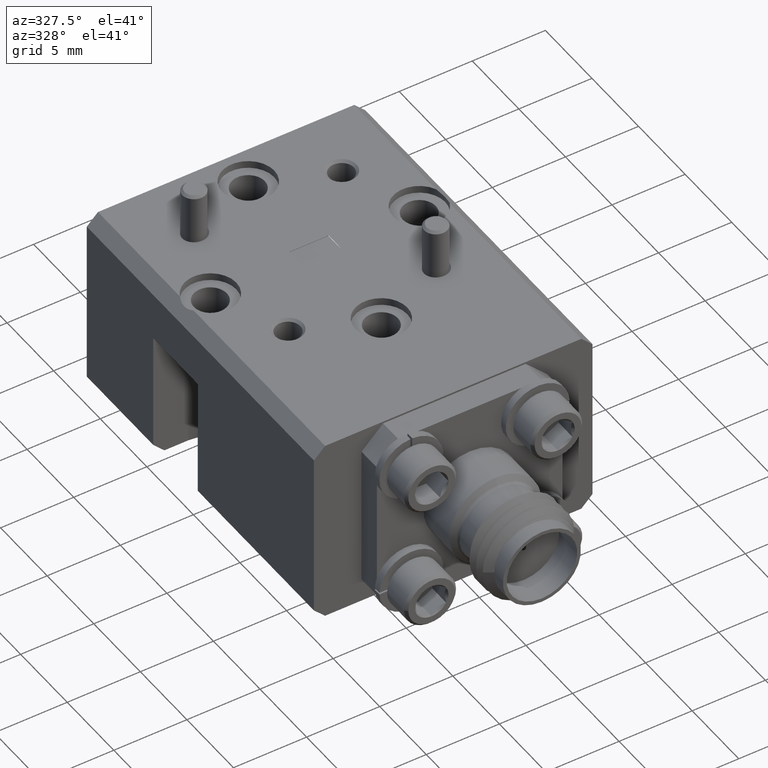
[diagram: clean part render]
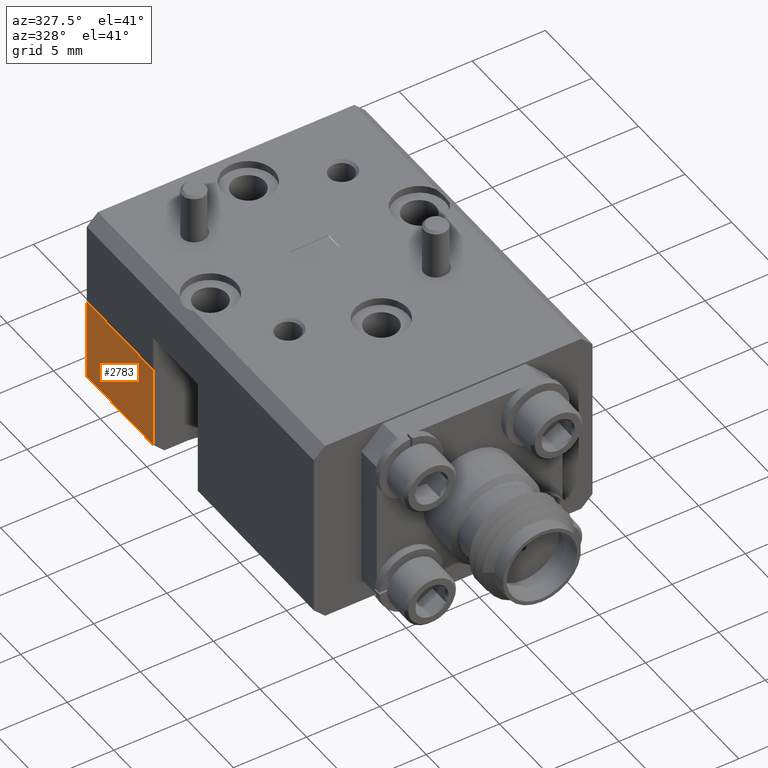
[diagram: same view with one face highlighted and labeled with its STEP entity id]
A machine part, auxiliary view. The second image highlights one B-rep face of the part: STEP entity #2783.
In plain terms, the highlighted planar face has unit normal (1, 0, 0).
Its self-contained STEP definition (entity closure, byte-faithful):
#117 = DIRECTION ( 'NONE',  ( -1.848892746611746400E-032, -1.000000000000000000, -2.775557561562888900E-017 ) ) ;
#121 = DIRECTION ( 'NONE',  ( -4.513000746678564400E-017, -2.000651077005296400E-017, 1.000000000000000000 ) ) ;
#140 = DIRECTION ( 'NONE',  ( 1.000000000000000000, 1.296380161915128700E-032, 4.513000746678564400E-017 ) ) ;
#207 = CARTESIAN_POINT ( 'NONE',  ( -0.3750000000000001100, -0.4799999999999999800, -0.2550000000000000000 ) ) ;
#250 = LINE ( 'NONE', #7515, #6248 ) ;
#692 = ORIENTED_EDGE ( 'NONE', *, *, #7985, .T. ) ;
#711 = VERTEX_POINT ( 'NONE', #5286 ) ;
#907 = CARTESIAN_POINT ( 'NONE',  ( -0.3750000000000001100, 0.4800000000000001500, -0.2550000000000000000 ) ) ;
#960 = PLANE ( 'NONE',  #9520 ) ;
#967 = LINE ( 'NONE', #6202, #7733 ) ;
#1178 = VERTEX_POINT ( 'NONE', #5840 ) ;
#2321 = VERTEX_POINT ( 'NONE', #2592 ) ;
#2592 = CARTESIAN_POINT ( 'NONE',  ( -0.3750000000000001100, 0.1989999999999999500, -0.2249999999999997600 ) ) ;
#2655 = VECTOR ( 'NONE', #117, 39.37007874015748100 ) ;
#2783 = ADVANCED_FACE ( 'NONE', ( #8602 ), #960, .F. ) ;
#3117 = LINE ( 'NONE', #907, #4462 ) ;
#3471 = EDGE_CURVE ( 'NONE', #2321, #1178, #967, .T. ) ;
#4462 = VECTOR ( 'NONE', #121, 39.37007874015748100 ) ;
#4891 = CARTESIAN_POINT ( 'NONE',  ( -0.3750000000000001100, 0.1989999999999999500, -0.2249999999999997600 ) ) ;
#5013 = DIRECTION ( 'NONE',  ( 1.848892746611746400E-032, 1.000000000000000000, 2.775557561562888900E-017 ) ) ;
#5286 = CARTESIAN_POINT ( 'NONE',  ( -0.3750000000000001100, 0.4800000000000001500, 1.332267629550187000E-017 ) ) ;
#5377 = EDGE_CURVE ( 'NONE', #9307, #711, #3117, .T. ) ;
#5773 = EDGE_LOOP ( 'NONE', ( #7519, #7492, #9533, #692 ) ) ;
#5840 = CARTESIAN_POINT ( 'NONE',  ( -0.3750000000000001100, 0.1989999999999999500, 5.523359547510147900E-018 ) ) ;
#6202 = CARTESIAN_POINT ( 'NONE',  ( -0.3750000000000001100, 0.1989999999999999500, -0.2550393700787401100 ) ) ;
#6248 = VECTOR ( 'NONE', #5013, 39.37007874015748100 ) ;
#7004 = DIRECTION ( 'NONE',  ( -4.513000746678564400E-017, -2.000651077005296400E-017, 1.000000000000000000 ) ) ;
#7172 = EDGE_CURVE ( 'NONE', #9307, #2321, #10071, .T. ) ;
#7492 = ORIENTED_EDGE ( 'NONE', *, *, #7172, .T. ) ;
#7515 = CARTESIAN_POINT ( 'NONE',  ( -0.3750000000000001100, -0.4799999999999999800, -1.332267629550186700E-017 ) ) ;
#7519 = ORIENTED_EDGE ( 'NONE', *, *, #5377, .F. ) ;
#7733 = VECTOR ( 'NONE', #7004, 39.37007874015748100 ) ;
#7985 = EDGE_CURVE ( 'NONE', #1178, #711, #250, .T. ) ;
#8001 = DIRECTION ( 'NONE',  ( 4.513000746678564400E-017, 2.000651077005296400E-017, -1.000000000000000000 ) ) ;
#8602 = FACE_OUTER_BOUND ( 'NONE', #5773, .T. ) ;
#9307 = VERTEX_POINT ( 'NONE', #10145 ) ;
#9520 = AXIS2_PLACEMENT_3D ( 'NONE', #207, #140, #8001 ) ;
#9533 = ORIENTED_EDGE ( 'NONE', *, *, #3471, .T. ) ;
#10071 = LINE ( 'NONE', #4891, #2655 ) ;
#10145 = CARTESIAN_POINT ( 'NONE',  ( -0.3750000000000001100, 0.4800000000000001500, -0.2249999999999997600 ) ) ;